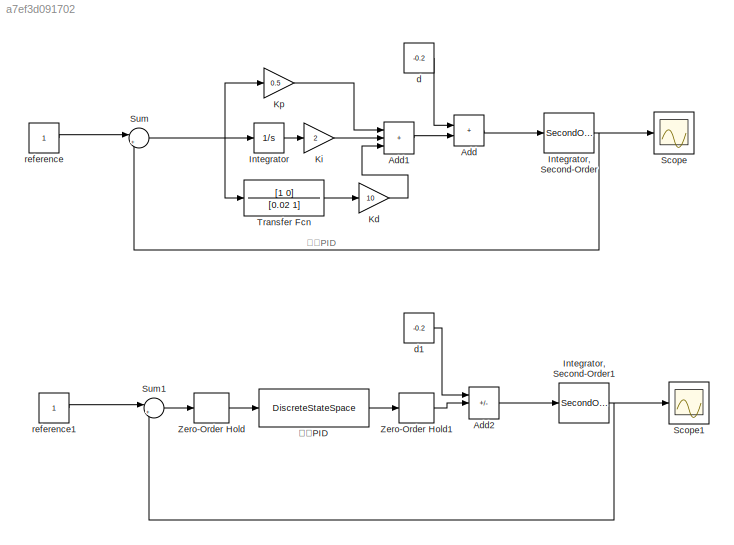
MODEL slx_a7ef3d091702
KIND model
CONFIG AbsTol = auto
CONFIG EnableMultiTasking = off
CONFIG FixedStep = auto
CONFIG MaxStep = auto
CONFIG MinStep = auto
CONFIG PostLoadFcn = pid_demo_init
CONFIG RelTol = 1e-3
CONFIG SampleTimeConstraint = Unconstrained
CONFIG SolverName = VariableStepAuto
CONFIG StartTime = 0.0
CONFIG StopTime = 50
BLOCK [Sum] Add
  IconShape = rectangular
BLOCK [Sum] Add1
  IconShape = rectangular
  Inputs = +++
BLOCK [Sum] Add2
  IconShape = rectangular
  Inputs = ++-
BLOCK [Integrator] Integrator
BLOCK [SecondOrderIntegrator] Integrator, Second-Order
  ShowOutput = x
BLOCK [SecondOrderIntegrator] Integrator, Second-Order1
  ShowOutput = x
BLOCK [Gain] Kd
  Gain = 10
BLOCK [Gain] Ki
  Gain = 2
BLOCK [Gain] Kp
  Gain = 0.5
BLOCK [Scope] Scope
  ActiveDisplayYMaximum = 1
  ActiveDisplayYMinimum = -1
  Floating = off
  GraphicalSettings = {"Style":{"BackgroundColor":[0.12941176470588237,0.12941176470588237,0.12941176470588237],"AxesColor":[0.07058823529411765,0.07058823529411765,0.07058823529411765],"LabelsColor":[0.8509803921568627,0.8509803921568627,0.8509803921568627],"PreserveColors":false,"Visible":[true],"LineStyle":["-"],"LineWidth":[1.5],"BarWidth":[0.9],"LineColor":["auto"],"LineFaceAlpha":[1],"LineEdgeAlpha":[1],"Marker":...<+1930ch>
  MultipleDisplayCache = [{"MaxYLimMag":1,"MaxYLimReal":1,"MinYLimMag":0,"MinYLimReal":-1,"PlotAsMagnitudePhase":false,"ShowGrid":true,"ShowLegend":false,"Title":"%<SignalLabel>","YLabel":""}]
  NumInputPorts = 1
  ScopeFrameLocation = window
  WasSavedAsWebScope = on
  WindowPosition = [1.000000,49.000000,2048.000000,1081.000000,]
BLOCK [Scope] Scope1
  ActiveDisplayYMaximum = 1.1289316579477218
  ActiveDisplayYMinimum = -0.12543685088308018
  DataLoggingVariableName = ScopeData1
  Floating = off
  GraphicalSettings = {"Style":{"BackgroundColor":[0.12941176470588237,0.12941176470588237,0.12941176470588237],"AxesColor":[0.07058823529411765,0.07058823529411765,0.07058823529411765],"LabelsColor":[0.8509803921568627,0.8509803921568627,0.8509803921568627],"PreserveColors":false,"Visible":[true,true],"LineStyle":["-","-"],"LineWidth":[1.5,1.5],"BarWidth":[0.9,0.9],"LineColor":["auto","auto"],"LineFaceAlpha":[1,1],"Li...<+2144ch>
  MultipleDisplayCache = [{"MaxYLimMag":1.1289316579477218,"MaxYLimReal":1.1289316579477218,"MinYLimMag":0,"MinYLimReal":-0.12543685088308018,"PlotAsMagnitudePhase":false,"ShowGrid":true,"ShowLegend":true,"Title":"%<SignalLabel>","YLabel":""}]
  NumInputPorts = 1
  ScopeFrameLocation = window
  ShowLegend = on
  Visible = on
  WasSavedAsWebScope = on
  WindowPosition = [-2047.000000,49.000000,2048.000000,1081.000000,]
BLOCK [Sum] Sum
  Inputs = |+-
BLOCK [Sum] Sum1
  Inputs = |+-
BLOCK [TransferFcn] Transfer Fcn
  Denominator = [0.02 1]
  Numerator = [1 0]
BLOCK [ZeroOrderHold] Zero-Order Hold
  SampleTime = Ts
BLOCK [ZeroOrderHold] Zero-Order Hold1
  SampleTime = Ts
BLOCK [Constant] d
  Value = -0.2
BLOCK [Constant] d1
  Value = -0.2
BLOCK [Constant] reference
BLOCK [Constant] reference1
BLOCK [DiscreteStateSpace] 离散PID
  A = A
  B = B
  C = C
  D = D
  SampleTime = Ts
ANNOTATION (root): 连续PID
LINE Add1:1 -> Add:2
LINE Add2:1 -> Integrator, Second-Order1:1
LINE Add:1 -> Integrator, Second-Order:1
NET Integrator, Second-Order1:1 -> Scope1:1, Sum1:2
NET Integrator, Second-Order:1 -> Scope:1, Sum:2
LINE Integrator:1 -> Ki:1
LINE Kd:1 -> Add1:3
LINE Ki:1 -> Add1:2
LINE Kp:1 -> Add1:1
LINE Sum1:1 -> Zero-Order Hold:1
NET Sum:1 -> Integrator:1, Kp:1, Transfer Fcn:1
LINE Transfer Fcn:1 -> Kd:1
LINE Zero-Order Hold1:1 -> Add2:2
LINE Zero-Order Hold:1 -> 离散PID:1
LINE d1:1 -> Add2:1
LINE d:1 -> Add:1
LINE reference1:1 -> Sum1:1
LINE reference:1 -> Sum:1
LINE 离散PID:1 -> Zero-Order Hold1:1
note: NET lines group one-source signal fan-out (src -> all destinations, sorted); 1:1 wires keep LINE
